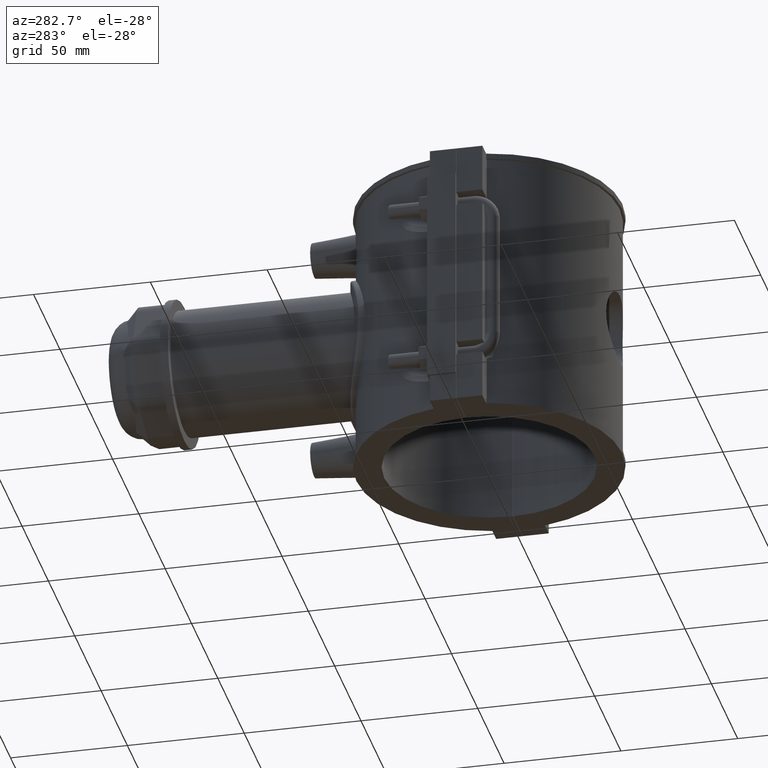
[diagram: clean part render]
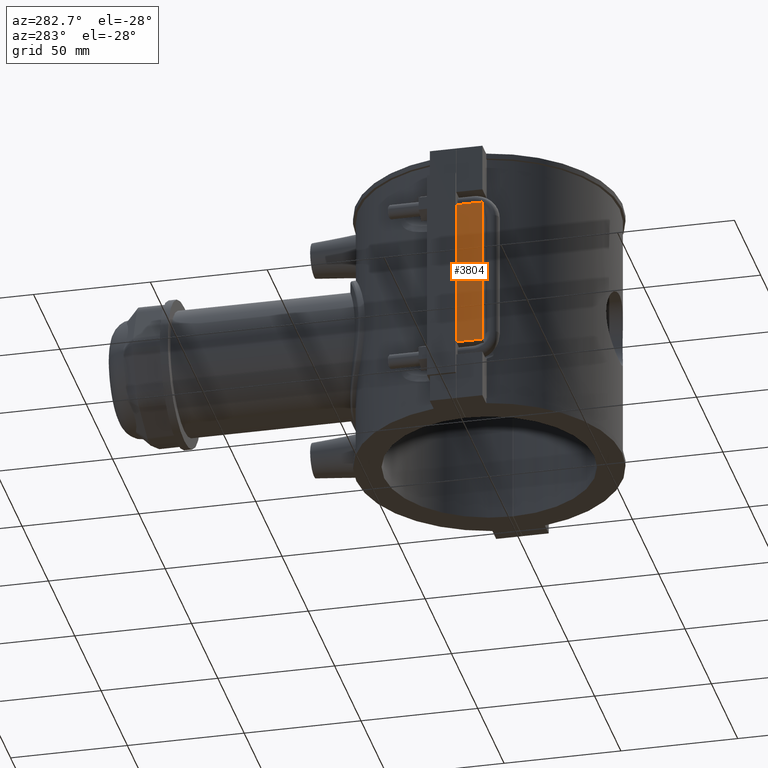
[diagram: same view with one face highlighted and labeled with its STEP entity id]
A machine part, auxiliary view. The second image highlights one B-rep face of the part: STEP entity #3804.
In plain terms, the highlighted planar face has unit normal (-1, 0, 0).
Its self-contained STEP definition (entity closure, byte-faithful):
#258=LINE('',#7559,#557);
#261=LINE('',#7564,#560);
#265=LINE('',#7572,#564);
#287=LINE('',#7627,#586);
#557=VECTOR('',#4801,11.2);
#560=VECTOR('',#4806,64.8);
#564=VECTOR('',#4814,11.2);
#586=VECTOR('',#4876,64.8);
#774=PLANE('',#4129);
#1172=FACE_OUTER_BOUND('',#1445,.T.);
#1445=EDGE_LOOP('',(#3468,#3469,#3470,#3471));
#1847=VERTEX_POINT('',#7556);
#1848=VERTEX_POINT('',#7558);
#1849=VERTEX_POINT('',#7562);
#1851=VERTEX_POINT('',#7570);
#2315=EDGE_CURVE('',#1848,#1847,#258,.T.);
#2318=EDGE_CURVE('',#1847,#1849,#261,.T.);
#2322=EDGE_CURVE('',#1849,#1851,#265,.T.);
#2351=EDGE_CURVE('',#1851,#1848,#287,.T.);
#3468=ORIENTED_EDGE('',*,*,#2322,.T.);
#3469=ORIENTED_EDGE('',*,*,#2351,.T.);
#3470=ORIENTED_EDGE('',*,*,#2315,.T.);
#3471=ORIENTED_EDGE('',*,*,#2318,.T.);
#3804=ADVANCED_FACE('',(#1172),#774,.T.);
#4129=AXIS2_PLACEMENT_3D('',#8019,#5064,#5065);
#4801=DIRECTION('',(0.,-1.,0.));
#4806=DIRECTION('',(0.,0.,1.));
#4814=DIRECTION('',(0.,1.,0.));
#4876=DIRECTION('',(0.,0.,-1.));
#5064=DIRECTION('center_axis',(-1.,0.,0.));
#5065=DIRECTION('ref_axis',(0.,-1.,0.));
#7556=CARTESIAN_POINT('',(-63.,-11.25,-32.4));
#7558=CARTESIAN_POINT('',(-63.,-0.0500000000000078,-32.4));
#7559=CARTESIAN_POINT('',(-63.,1.11022302462516E-14,-32.4));
#7562=CARTESIAN_POINT('',(-63.,-11.25,32.4));
#7564=CARTESIAN_POINT('',(-63.,-11.25,0.));
#7570=CARTESIAN_POINT('',(-63.,-0.0500000000000078,32.4));
#7572=CARTESIAN_POINT('',(-63.,1.11022302462516E-14,32.4));
#7627=CARTESIAN_POINT('',(-63.,-0.0500000000000078,-29.5));
#8019=CARTESIAN_POINT('Origin',(-63.,11.25,0.));